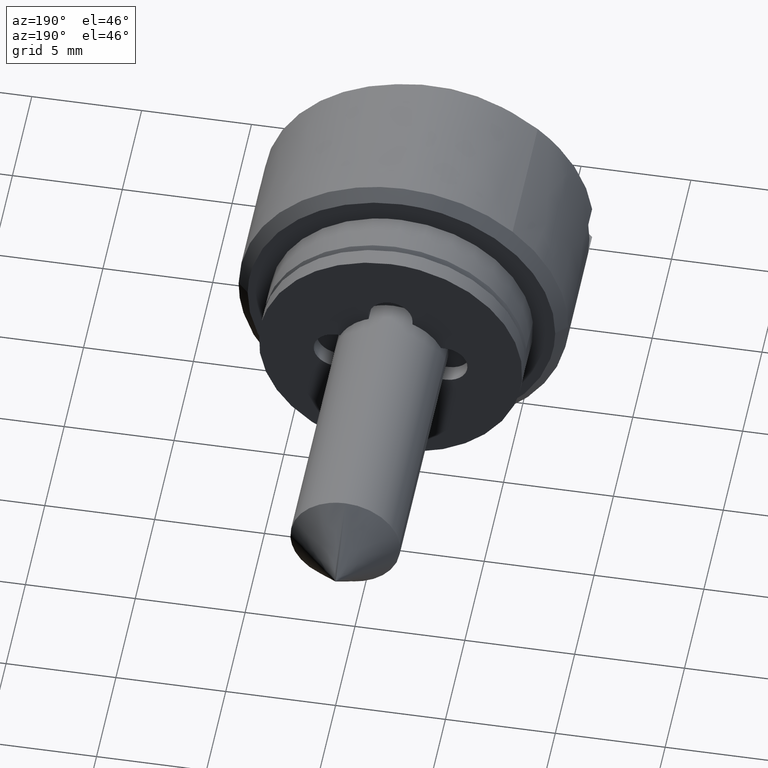
[diagram: clean part render]
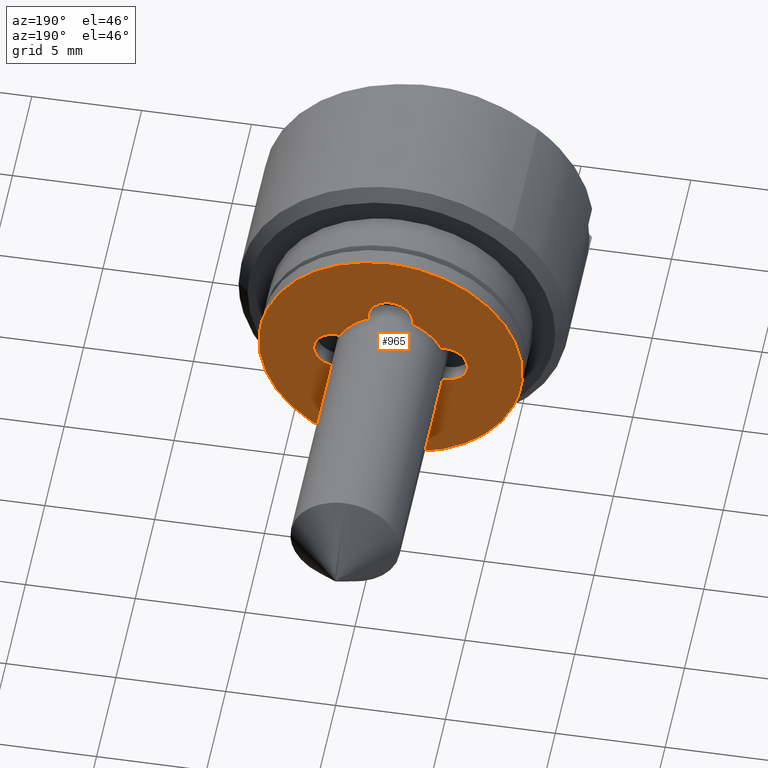
[diagram: same view with one face highlighted and labeled with its STEP entity id]
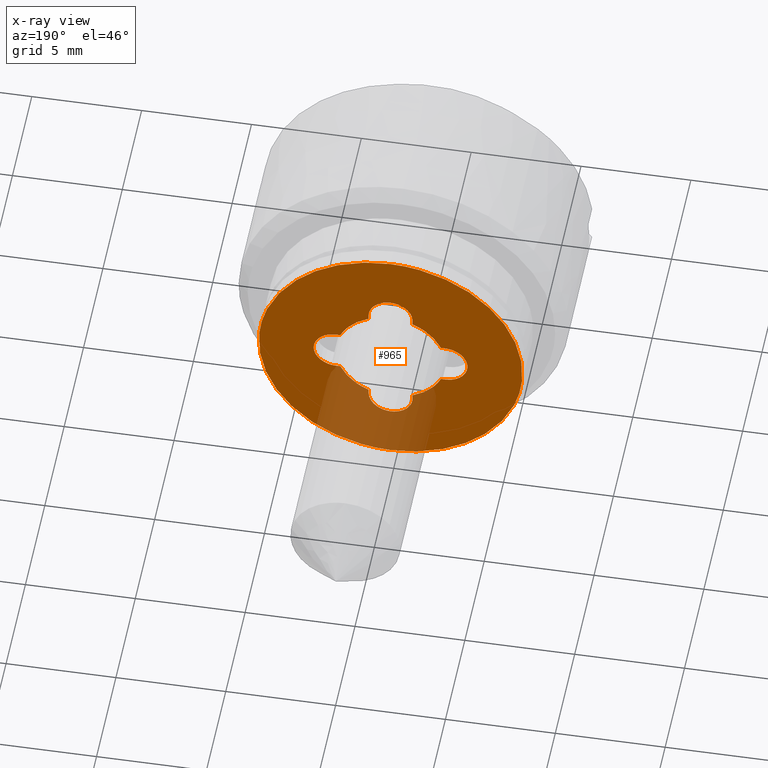
[diagram: x-ray of the same camera — body ghosted, the highlighted face saturated]
A machine part, auxiliary view. The second image highlights one B-rep face of the part: STEP entity #965.
The next image is the same camera in x-ray: the body ghosted, the highlighted face saturated — about 20% of this face is hidden behind the body in this view.
In plain terms, the highlighted face is a freeform B-spline surface patch.
Its self-contained STEP definition (entity closure, byte-faithful):
#79=CARTESIAN_POINT('',(0.800000000000023,-5.981504327185722,0.470750447521118));
#80=VERTEX_POINT('',#79);
#86=CARTESIAN_POINT('',(0.800000000000023,0.0,6.0));
#87=VERTEX_POINT('',#86);
#88=CARTESIAN_POINT('',(0.800000000000023,0.0,6.0));
#89=CARTESIAN_POINT('',(0.800000000000023,-5.546346788396239,6.000000000000001));
#90=CARTESIAN_POINT('',(0.800000000000023,-5.981504327185722,0.470750447521118));
#98=(BOUNDED_CURVE()B_SPLINE_CURVE(2,(#88,#89,#90),.UNSPECIFIED.,.F.,.U.)B_SPLINE_CURVE_WITH_KNOTS((3,3),(0.0,0.236331418904445),.UNSPECIFIED.)CURVE()GEOMETRIC_REPRESENTATION_ITEM()RATIONAL_B_SPLINE_CURVE((1.0,0.723120520041307,0.969723602995916))REPRESENTATION_ITEM(''));
#99=EDGE_CURVE('',#87,#80,#98,.T.);
#101=CARTESIAN_POINT('',(0.800000000000023,5.981504327185722,-0.470750447521118));
#102=VERTEX_POINT('',#101);
#103=CARTESIAN_POINT('',(0.800000000000023,5.981504327185722,-0.470750447521118));
#104=CARTESIAN_POINT('',(0.800000000000023,6.000000000000001,-0.235738569047488));
#105=CARTESIAN_POINT('',(0.800000000000023,6.0,0.0));
#106=CARTESIAN_POINT('',(0.800000000000023,6.0,6.0));
#107=CARTESIAN_POINT('',(0.800000000000023,0.0,6.0));
#115=(BOUNDED_CURVE()B_SPLINE_CURVE(2,(#103,#104,#105,#106,#107),.UNSPECIFIED.,.F.,.U.)B_SPLINE_CURVE_WITH_KNOTS((3,2,3),(0.736331418904445,0.750000000000000,1.0),.UNSPECIFIED.)CURVE()GEOMETRIC_REPRESENTATION_ITEM()RATIONAL_B_SPLINE_CURVE((0.969723602995916,0.983986261145241,1.0,0.707106781186548,1.0))REPRESENTATION_ITEM(''));
#116=EDGE_CURVE('',#102,#87,#115,.T.);
#192=CARTESIAN_POINT('',(0.800000000000023,0.0,-6.0));
#193=VERTEX_POINT('',#192);
#194=CARTESIAN_POINT('',(0.800000000000023,0.0,-6.0));
#195=CARTESIAN_POINT('',(0.800000000000023,5.546346788396235,-6.0));
#196=CARTESIAN_POINT('',(0.800000000000023,5.981504327185722,-0.470750447521118));
#204=(BOUNDED_CURVE()B_SPLINE_CURVE(2,(#194,#195,#196),.UNSPECIFIED.,.F.,.U.)B_SPLINE_CURVE_WITH_KNOTS((3,3),(0.500000000000000,0.736331418904445),.UNSPECIFIED.)CURVE()GEOMETRIC_REPRESENTATION_ITEM()RATIONAL_B_SPLINE_CURVE((1.0,0.723120520041307,0.969723602995916))REPRESENTATION_ITEM(''));
#205=EDGE_CURVE('',#193,#102,#204,.T.);
#207=CARTESIAN_POINT('',(0.800000000000023,-5.981504327185722,0.470750447521118));
#208=CARTESIAN_POINT('',(0.800000000000023,-6.0,0.235738569047488));
#209=CARTESIAN_POINT('',(0.800000000000023,-6.0,0.0));
#210=CARTESIAN_POINT('',(0.800000000000023,-6.0,-6.0));
#211=CARTESIAN_POINT('',(0.800000000000023,0.0,-6.0));
#219=(BOUNDED_CURVE()B_SPLINE_CURVE(2,(#207,#208,#209,#210,#211),.UNSPECIFIED.,.F.,.U.)B_SPLINE_CURVE_WITH_KNOTS((3,2,3),(0.236331418904445,0.250000000000000,0.500000000000000),.UNSPECIFIED.)CURVE()GEOMETRIC_REPRESENTATION_ITEM()RATIONAL_B_SPLINE_CURVE((0.969723602995916,0.983986261145241,1.0,0.707106781186548,1.0))REPRESENTATION_ITEM(''));
#220=EDGE_CURVE('',#80,#193,#219,.T.);
#240=CARTESIAN_POINT('',(0.800000000000011,1.0,2.291287847477920));
#241=VERTEX_POINT('',#240);
#247=CARTESIAN_POINT('',(0.800000000000023,1.0,2.500000000000000));
#248=VERTEX_POINT('',#247);
#249=CARTESIAN_POINT('',(0.800000000000011,1.0,2.291287847477920));
#250=CARTESIAN_POINT('',(0.800000000000023,1.0,2.500000000000000));
#251=QUASI_UNIFORM_CURVE('',1,(#249,#250),.UNSPECIFIED.,.F.,.U.);
#252=EDGE_CURVE('',#241,#248,#251,.T.);
#291=CARTESIAN_POINT('',(0.800000000000023,2.291287847477905,1.0));
#292=VERTEX_POINT('',#291);
#298=CARTESIAN_POINT('',(0.800000000000023,2.291287847477905,1.0));
#299=CARTESIAN_POINT('',(0.800000000000023,1.898952716879291,1.898952716879296));
#300=CARTESIAN_POINT('',(0.800000000000011,1.0,2.291287847477920));
#308=(BOUNDED_CURVE()B_SPLINE_CURVE(2,(#298,#299,#300),.UNSPECIFIED.,.F.,.U.)CURVE()GEOMETRIC_REPRESENTATION_ITEM()QUASI_UNIFORM_CURVE()RATIONAL_B_SPLINE_CURVE((1.0,0.930916782315406,1.0))REPRESENTATION_ITEM(''));
#309=EDGE_CURVE('',#292,#241,#308,.T.);
#327=CARTESIAN_POINT('',(0.800000000000023,2.497350253758710,1.0));
#328=VERTEX_POINT('',#327);
#334=CARTESIAN_POINT('',(0.800000000000023,2.497350253758710,1.0));
#335=CARTESIAN_POINT('',(0.800000000000023,2.291287847477905,1.0));
#336=QUASI_UNIFORM_CURVE('',1,(#334,#335),.UNSPECIFIED.,.F.,.U.);
#337=EDGE_CURVE('',#328,#292,#336,.T.);
#378=CARTESIAN_POINT('',(0.800000000000023,2.497350253758710,-1.0));
#379=VERTEX_POINT('',#378);
#385=CARTESIAN_POINT('',(0.800000000000023,2.497350253758710,-1.000000000000000));
#386=CARTESIAN_POINT('',(0.800000000000023,3.497350253758710,-1.000000000000000));
#387=CARTESIAN_POINT('',(0.800000000000023,3.497350253758710,1.529135E-016));
#388=CARTESIAN_POINT('',(0.800000000000023,3.497350253758710,1.000000000000000));
#389=CARTESIAN_POINT('',(0.800000000000023,2.497350253758710,1.0));
#397=(BOUNDED_CURVE()B_SPLINE_CURVE(2,(#385,#386,#387,#388,#389),.UNSPECIFIED.,.F.,.U.)B_SPLINE_CURVE_WITH_KNOTS((3,2,3),(0.0,0.500000000000000,1.0),.UNSPECIFIED.)CURVE()GEOMETRIC_REPRESENTATION_ITEM()RATIONAL_B_SPLINE_CURVE((1.0,0.707106781186548,1.0,0.707106781186548,1.0))REPRESENTATION_ITEM(''));
#398=EDGE_CURVE('',#379,#328,#397,.T.);
#416=CARTESIAN_POINT('',(0.800000000000023,2.291287847477920,-1.0));
#417=VERTEX_POINT('',#416);
#423=CARTESIAN_POINT('',(0.800000000000023,2.291287847477920,-1.0));
#424=CARTESIAN_POINT('',(0.800000000000023,2.497350253758710,-1.0));
#425=QUASI_UNIFORM_CURVE('',1,(#423,#424),.UNSPECIFIED.,.F.,.U.);
#426=EDGE_CURVE('',#417,#379,#425,.T.);
#461=CARTESIAN_POINT('',(0.800000000000023,1.0,-2.291287847477920));
#462=VERTEX_POINT('',#461);
#468=CARTESIAN_POINT('',(0.800000000000023,0.999999999999999,-2.291287847477920));
#469=CARTESIAN_POINT('',(0.800000000000023,1.898952716879295,-1.898952716879295));
#470=CARTESIAN_POINT('',(0.800000000000023,2.291287847477920,-1.0));
#478=(BOUNDED_CURVE()B_SPLINE_CURVE(2,(#468,#469,#470),.UNSPECIFIED.,.F.,.U.)CURVE()GEOMETRIC_REPRESENTATION_ITEM()QUASI_UNIFORM_CURVE()RATIONAL_B_SPLINE_CURVE((1.0,0.930916782315405,1.0))REPRESENTATION_ITEM(''));
#479=EDGE_CURVE('',#462,#417,#478,.T.);
#497=CARTESIAN_POINT('',(0.800000000000023,1.0,-2.500000000000000));
#498=VERTEX_POINT('',#497);
#504=CARTESIAN_POINT('',(0.800000000000023,1.0,-2.500000000000000));
#505=CARTESIAN_POINT('',(0.800000000000023,1.0,-2.291287847477920));
#506=QUASI_UNIFORM_CURVE('',1,(#504,#505),.UNSPECIFIED.,.F.,.U.);
#507=EDGE_CURVE('',#498,#462,#506,.T.);
#548=CARTESIAN_POINT('',(0.800000000000023,-1.0,-2.500000000000000));
#549=VERTEX_POINT('',#548);
#555=CARTESIAN_POINT('',(0.800000000000023,-1.0,-2.500000000000000));
#556=CARTESIAN_POINT('',(0.800000000000023,-1.0,-3.499999999999999));
#557=CARTESIAN_POINT('',(0.800000000000023,0.0,-3.500000000000000));
#558=CARTESIAN_POINT('',(0.800000000000023,1.0,-3.499999999999999));
#559=CARTESIAN_POINT('',(0.800000000000023,1.0,-2.500000000000000));
#567=(BOUNDED_CURVE()B_SPLINE_CURVE(2,(#555,#556,#557,#558,#559),.UNSPECIFIED.,.F.,.U.)B_SPLINE_CURVE_WITH_KNOTS((3,2,3),(0.0,0.500000000000000,1.0),.UNSPECIFIED.)CURVE()GEOMETRIC_REPRESENTATION_ITEM()RATIONAL_B_SPLINE_CURVE((1.0,0.707106781186548,1.0,0.707106781186548,1.0))REPRESENTATION_ITEM(''));
#568=EDGE_CURVE('',#549,#498,#567,.T.);
#586=CARTESIAN_POINT('',(0.800000000000023,-1.0,-2.291287847477920));
#587=VERTEX_POINT('',#586);
#593=CARTESIAN_POINT('',(0.800000000000023,-1.0,-2.291287847477920));
#594=CARTESIAN_POINT('',(0.800000000000023,-1.0,-2.500000000000000));
#595=QUASI_UNIFORM_CURVE('',1,(#593,#594),.UNSPECIFIED.,.F.,.U.);
#596=EDGE_CURVE('',#587,#549,#595,.T.);
#631=CARTESIAN_POINT('',(0.800000000000023,-2.291287847477905,-1.0));
#632=VERTEX_POINT('',#631);
#638=CARTESIAN_POINT('',(0.800000000000023,-2.291287847477905,-1.0));
#639=CARTESIAN_POINT('',(0.800000000000023,-1.898952716879291,-1.898952716879296));
#640=CARTESIAN_POINT('',(0.800000000000023,-1.0,-2.291287847477920));
#648=(BOUNDED_CURVE()B_SPLINE_CURVE(2,(#638,#639,#640),.UNSPECIFIED.,.F.,.U.)CURVE()GEOMETRIC_REPRESENTATION_ITEM()QUASI_UNIFORM_CURVE()RATIONAL_B_SPLINE_CURVE((1.0,0.930916782315406,1.0))REPRESENTATION_ITEM(''));
#649=EDGE_CURVE('',#632,#587,#648,.T.);
#667=CARTESIAN_POINT('',(0.800000000000023,-2.500000000000000,-1.0));
#668=VERTEX_POINT('',#667);
#674=CARTESIAN_POINT('',(0.800000000000023,-2.500000000000000,-1.0));
#675=CARTESIAN_POINT('',(0.800000000000023,-2.291287847477905,-1.0));
#676=QUASI_UNIFORM_CURVE('',1,(#674,#675),.UNSPECIFIED.,.F.,.U.);
#677=EDGE_CURVE('',#668,#632,#676,.T.);
#718=CARTESIAN_POINT('',(0.800000000000023,-2.500000000000000,1.0));
#719=VERTEX_POINT('',#718);
#725=CARTESIAN_POINT('',(0.800000000000023,-2.500000000000000,1.0));
#726=CARTESIAN_POINT('',(0.800000000000023,-3.499999999999999,1.0));
#727=CARTESIAN_POINT('',(0.800000000000023,-3.500000000000000,0.0));
#728=CARTESIAN_POINT('',(0.800000000000023,-3.499999999999999,-1.0));
#729=CARTESIAN_POINT('',(0.800000000000023,-2.500000000000000,-1.0));
#737=(BOUNDED_CURVE()B_SPLINE_CURVE(2,(#725,#726,#727,#728,#729),.UNSPECIFIED.,.F.,.U.)B_SPLINE_CURVE_WITH_KNOTS((3,2,3),(0.0,0.500000000000000,1.0),.UNSPECIFIED.)CURVE()GEOMETRIC_REPRESENTATION_ITEM()RATIONAL_B_SPLINE_CURVE((1.0,0.707106781186548,1.0,0.707106781186548,1.0))REPRESENTATION_ITEM(''));
#738=EDGE_CURVE('',#719,#668,#737,.T.);
#756=CARTESIAN_POINT('',(0.800000000000023,-2.291287847477920,1.0));
#757=VERTEX_POINT('',#756);
#763=CARTESIAN_POINT('',(0.800000000000023,-2.291287847477920,1.0));
#764=CARTESIAN_POINT('',(0.800000000000023,-2.500000000000000,1.0));
#765=QUASI_UNIFORM_CURVE('',1,(#763,#764),.UNSPECIFIED.,.F.,.U.);
#766=EDGE_CURVE('',#757,#719,#765,.T.);
#801=CARTESIAN_POINT('',(0.800000000000023,-1.0,2.291287847477895));
#802=VERTEX_POINT('',#801);
#808=CARTESIAN_POINT('',(0.800000000000023,-1.0,2.291287847477895));
#809=CARTESIAN_POINT('',(0.800000000000023,-1.898952716879297,1.898952716879288));
#810=CARTESIAN_POINT('',(0.800000000000023,-2.291287847477920,1.000000000000000));
#818=(BOUNDED_CURVE()B_SPLINE_CURVE(2,(#808,#809,#810),.UNSPECIFIED.,.F.,.U.)CURVE()GEOMETRIC_REPRESENTATION_ITEM()QUASI_UNIFORM_CURVE()RATIONAL_B_SPLINE_CURVE((1.0,0.930916782315406,1.0))REPRESENTATION_ITEM(''));
#819=EDGE_CURVE('',#802,#757,#818,.T.);
#837=CARTESIAN_POINT('',(0.800000000000023,-1.0,2.500000000000000));
#838=VERTEX_POINT('',#837);
#844=CARTESIAN_POINT('',(0.800000000000023,-1.0,2.500000000000000));
#845=CARTESIAN_POINT('',(0.800000000000023,-1.0,2.291287847477895));
#846=QUASI_UNIFORM_CURVE('',1,(#844,#845),.UNSPECIFIED.,.F.,.U.);
#847=EDGE_CURVE('',#838,#802,#846,.T.);
#887=CARTESIAN_POINT('',(0.800000000000023,1.0,2.500000000000000));
#888=CARTESIAN_POINT('',(0.800000000000023,1.0,3.499999999999999));
#889=CARTESIAN_POINT('',(0.800000000000023,0.0,3.500000000000000));
#890=CARTESIAN_POINT('',(0.800000000000023,-1.0,3.499999999999999));
#891=CARTESIAN_POINT('',(0.800000000000023,-1.0,2.500000000000000));
#899=(BOUNDED_CURVE()B_SPLINE_CURVE(2,(#887,#888,#889,#890,#891),.UNSPECIFIED.,.F.,.U.)B_SPLINE_CURVE_WITH_KNOTS((3,2,3),(0.0,0.500000000000000,1.0),.UNSPECIFIED.)CURVE()GEOMETRIC_REPRESENTATION_ITEM()RATIONAL_B_SPLINE_CURVE((1.0,0.707106781186548,1.0,0.707106781186548,1.0))REPRESENTATION_ITEM(''));
#900=EDGE_CURVE('',#248,#838,#899,.T.);
#936=CARTESIAN_POINT('',(0.800000000000011,-6.597568516361106,6.599399976741672));
#937=CARTESIAN_POINT('',(0.800000000000011,6.597568838226188,6.599399976741672));
#938=CARTESIAN_POINT('',(0.800000000000011,-6.597568516361106,-6.599400298606753));
#939=CARTESIAN_POINT('',(0.800000000000011,6.597568838226188,-6.599400298606753));
#940=B_SPLINE_SURFACE_WITH_KNOTS('',1,1,((#936,#938),(#937,#939)),.UNSPECIFIED.,.F.,.F.,.U.,(2,2),(2,2),(0.0,13.195137354587290),(0.0,13.198800275348431),.UNSPECIFIED.);
#941=ORIENTED_EDGE('',*,*,#99,.T.);
#942=ORIENTED_EDGE('',*,*,#220,.T.);
#943=ORIENTED_EDGE('',*,*,#205,.T.);
#944=ORIENTED_EDGE('',*,*,#116,.T.);
#945=EDGE_LOOP('',(#941,#942,#943,#944));
#946=FACE_OUTER_BOUND('',#945,.T.);
#947=ORIENTED_EDGE('',*,*,#847,.F.);
#948=ORIENTED_EDGE('',*,*,#900,.F.);
#949=ORIENTED_EDGE('',*,*,#252,.F.);
#950=ORIENTED_EDGE('',*,*,#309,.F.);
#951=ORIENTED_EDGE('',*,*,#337,.F.);
#952=ORIENTED_EDGE('',*,*,#398,.F.);
#953=ORIENTED_EDGE('',*,*,#426,.F.);
#954=ORIENTED_EDGE('',*,*,#479,.F.);
#955=ORIENTED_EDGE('',*,*,#507,.F.);
#956=ORIENTED_EDGE('',*,*,#568,.F.);
#957=ORIENTED_EDGE('',*,*,#596,.F.);
#958=ORIENTED_EDGE('',*,*,#649,.F.);
#959=ORIENTED_EDGE('',*,*,#677,.F.);
#960=ORIENTED_EDGE('',*,*,#738,.F.);
#961=ORIENTED_EDGE('',*,*,#766,.F.);
#962=ORIENTED_EDGE('',*,*,#819,.F.);
#963=EDGE_LOOP('',(#947,#948,#949,#950,#951,#952,#953,#954,#955,#956,#957,#958,#959,#960,#961,#962));
#964=FACE_BOUND('',#963,.T.);
#965=ADVANCED_FACE('',(#946,#964),#940,.F.);